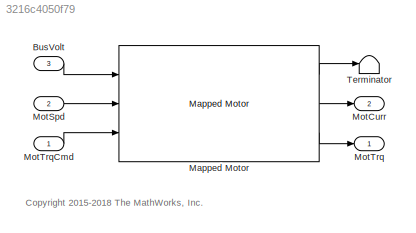
MODEL slx_3216c4050f79
KIND model
CONFIG AbsTol = auto
CONFIG EnableMultiTasking = off
CONFIG FixedStep = auto
CONFIG MaxStep = auto
CONFIG MinStep = auto
CONFIG RelTol = 1e-3
CONFIG SampleTimeConstraint = Unconstrained
CONFIG Solver = VariableStepAuto
CONFIG SolverName = VariableStepAuto
CONFIG StartTime = 0.0
CONFIG StopTime = 10.0
BLOCK [Inport] BusVolt
  IconDisplay = Port number
  Port = 3
BLOCK [Reference] Mapped Motor  REF=autolibmappedmotor/Mapped Motor
  Ports = [3, 3]
  SourceBlock = autolibmappedmotor/Mapped Motor
  SourceProductBaseCode = PW
  SourceProductName = Powertrain Blockset
  SourceType = MappedMotor
BLOCK [Outport] MotCurr
  IconDisplay = Port number
  Port = 2
  VectorParamsAs1DForOutWhenUnconnected = off
BLOCK [Inport] MotSpd
  IconDisplay = Port number
  Port = 2
BLOCK [Outport] MotTrq
  IconDisplay = Port number
  VectorParamsAs1DForOutWhenUnconnected = off
BLOCK [Inport] MotTrqCmd
  IconDisplay = Port number
BLOCK [Terminator] Terminator
ANNOTATION (root): <copyright redacted>
LINE BusVolt:1 -> Mapped Motor:1
LINE Mapped Motor:1 -> Terminator:1
LINE Mapped Motor:2 -> MotCurr:1
LINE Mapped Motor:3 -> MotTrq:1
LINE MotSpd:1 -> Mapped Motor:2
LINE MotTrqCmd:1 -> Mapped Motor:3
